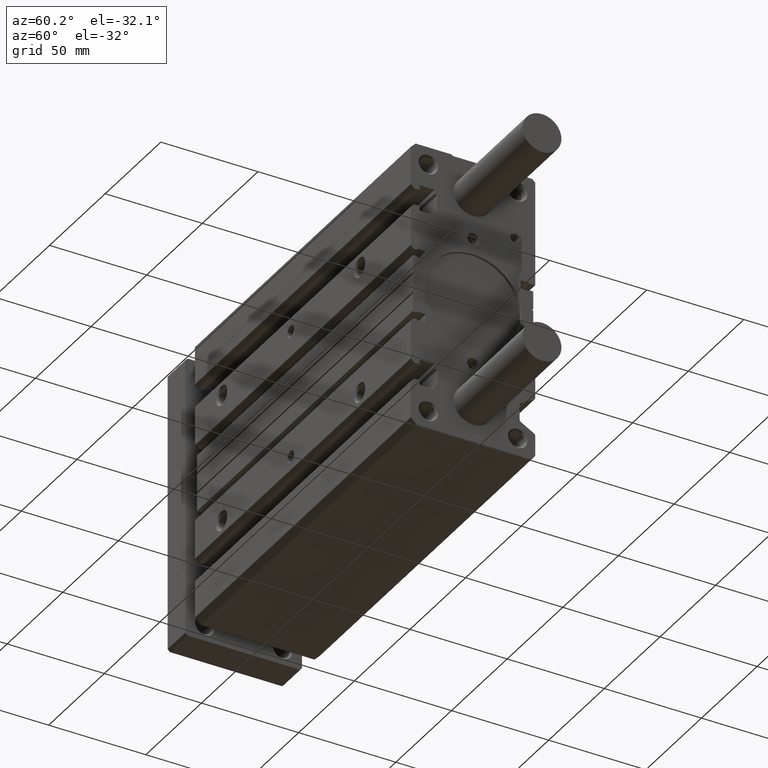
[diagram: clean part render]
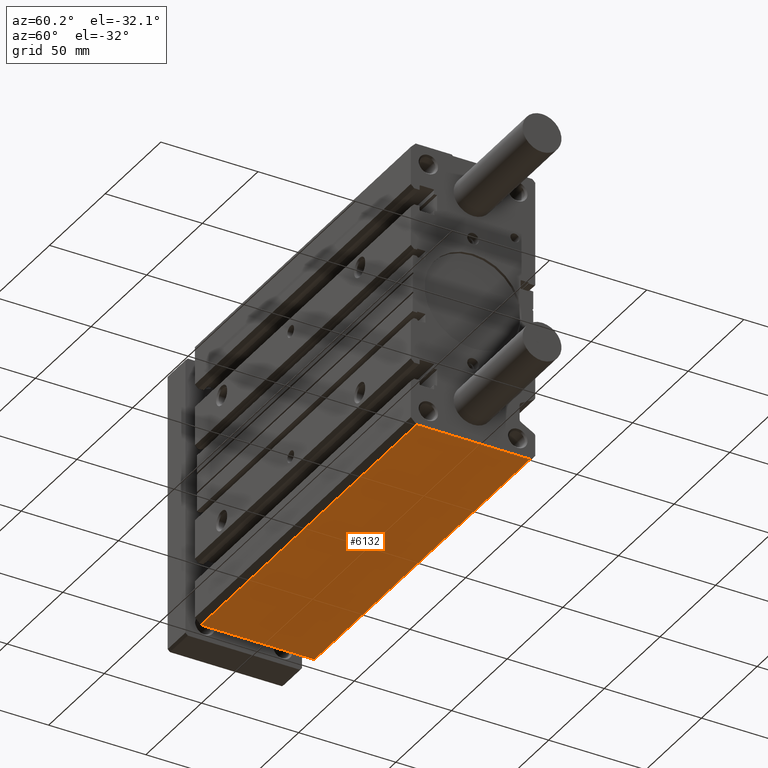
[diagram: same view with one face highlighted and labeled with its STEP entity id]
A machine part, auxiliary view. The second image highlights one B-rep face of the part: STEP entity #6132.
In plain terms, the highlighted planar face has unit normal (0, 0, -1).
Its self-contained STEP definition (entity closure, byte-faithful):
#234 = PLANE ( 'NONE',  #5916 ) ;
#506 = ORIENTED_EDGE ( 'NONE', *, *, #1079, .T. ) ;
#697 = DIRECTION ( 'NONE',  ( -1.000000000000000000, 0.000000000000000000, -0.000000000000000000 ) ) ;
#1079 = EDGE_CURVE ( 'NONE', #10780, #9178, #1966, .T. ) ;
#1458 = ORIENTED_EDGE ( 'NONE', *, *, #12278, .T. ) ;
#1808 = DIRECTION ( 'NONE',  ( -0.000000000000000000, -1.000000000000000000, -0.000000000000000000 ) ) ;
#1966 = LINE ( 'NONE', #6029, #6183 ) ;
#2920 = VECTOR ( 'NONE', #4320, 1000.000000000000000 ) ;
#3182 = CARTESIAN_POINT ( 'NONE',  ( 0.000000000000000000, 29.50000017885000148, -74.00000095360000785 ) ) ;
#3288 = ORIENTED_EDGE ( 'NONE', *, *, #4024, .T. ) ;
#3291 = DIRECTION ( 'NONE',  ( -1.000000000000000000, 0.000000000000000000, -0.000000000000000000 ) ) ;
#4024 = EDGE_CURVE ( 'NONE', #9178, #4298, #10338, .T. ) ;
#4094 = DIRECTION ( 'NONE',  ( 0.000000000000000000, 0.000000000000000000, -1.000000000000000000 ) ) ;
#4294 = CARTESIAN_POINT ( 'NONE',  ( 0.000000000000000000, 29.50000017885000148, -74.00000095360000785 ) ) ;
#4298 = VERTEX_POINT ( 'NONE', #11381 ) ;
#4320 = DIRECTION ( 'NONE',  ( 0.000000000000000000, 1.000000000000000000, 0.000000000000000000 ) ) ;
#5538 = ORIENTED_EDGE ( 'NONE', *, *, #6290, .F. ) ;
#5877 = LINE ( 'NONE', #11893, #6976 ) ;
#5916 = AXIS2_PLACEMENT_3D ( 'NONE', #4294, #4094, #3291 ) ;
#6029 = CARTESIAN_POINT ( 'NONE',  ( 0.000000000000000000, -28.99999916555000112, -74.00000095360000785 ) ) ;
#6132 = ADVANCED_FACE ( 'NONE', ( #10307 ), #234, .T. ) ;
#6183 = VECTOR ( 'NONE', #13092, 1000.000000000000000 ) ;
#6290 = EDGE_CURVE ( 'NONE', #9906, #4298, #5877, .T. ) ;
#6380 = EDGE_LOOP ( 'NONE', ( #3288, #5538, #1458, #506 ) ) ;
#6976 = VECTOR ( 'NONE', #697, 1000.000000000000000 ) ;
#6995 = LINE ( 'NONE', #10884, #7341 ) ;
#7341 = VECTOR ( 'NONE', #1808, 1000.000000000000000 ) ;
#9178 = VERTEX_POINT ( 'NONE', #9889 ) ;
#9889 = CARTESIAN_POINT ( 'NONE',  ( 0.000000000000000000, -28.99999916555000112, -74.00000095360000785 ) ) ;
#9906 = VERTEX_POINT ( 'NONE', #12514 ) ;
#10307 = FACE_OUTER_BOUND ( 'NONE', #6380, .T. ) ;
#10338 = LINE ( 'NONE', #3182, #2920 ) ;
#10780 = VERTEX_POINT ( 'NONE', #11427 ) ;
#10884 = CARTESIAN_POINT ( 'NONE',  ( 194.0000000000000000, 29.50000017885000148, -74.00000095360000785 ) ) ;
#11381 = CARTESIAN_POINT ( 'NONE',  ( 0.000000000000000000, 29.50000017885002990, -74.00000095360000785 ) ) ;
#11427 = CARTESIAN_POINT ( 'NONE',  ( 194.0000000000000000, -28.99999916555000112, -74.00000095360000785 ) ) ;
#11893 = CARTESIAN_POINT ( 'NONE',  ( 0.000000000000000000, 29.50000017885001924, -74.00000095360002206 ) ) ;
#12278 = EDGE_CURVE ( 'NONE', #9906, #10780, #6995, .T. ) ;
#12514 = CARTESIAN_POINT ( 'NONE',  ( 194.0000000000001705, 29.50000017885001924, -74.00000095360000785 ) ) ;
#13092 = DIRECTION ( 'NONE',  ( -1.000000000000000000, 0.000000000000000000, -0.000000000000000000 ) ) ;